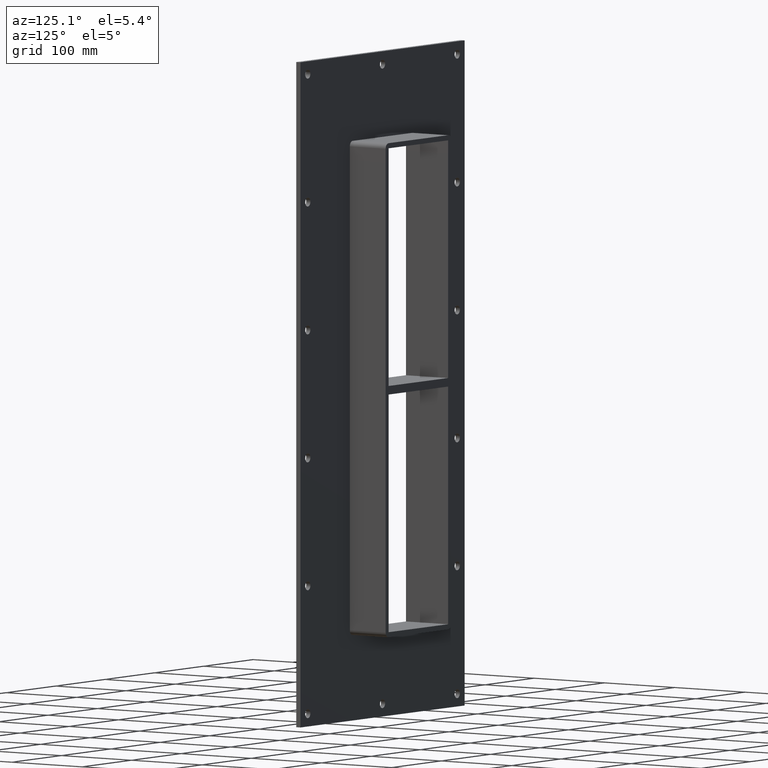
[diagram: clean part render]
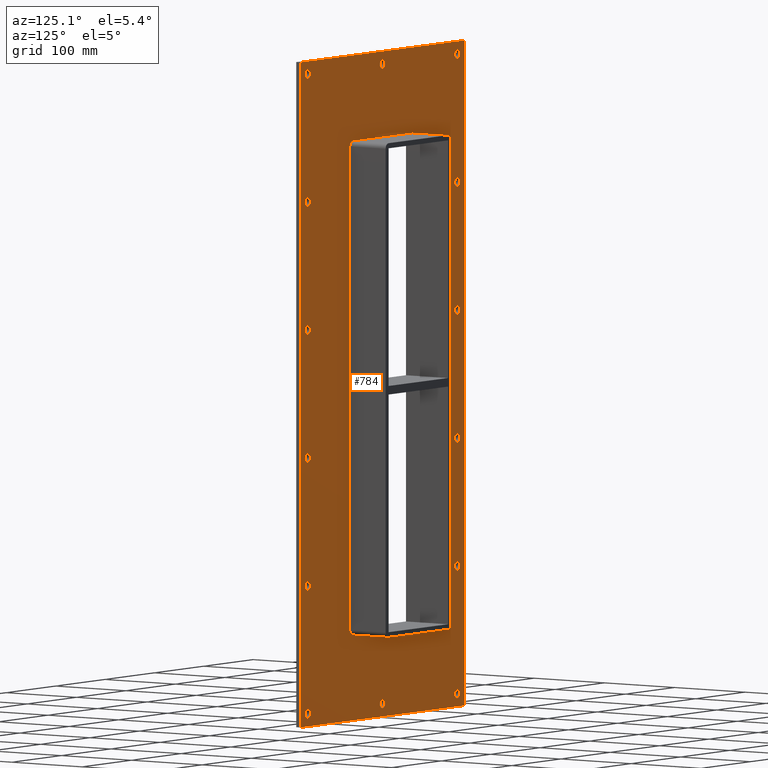
[diagram: same view with one face highlighted and labeled with its STEP entity id]
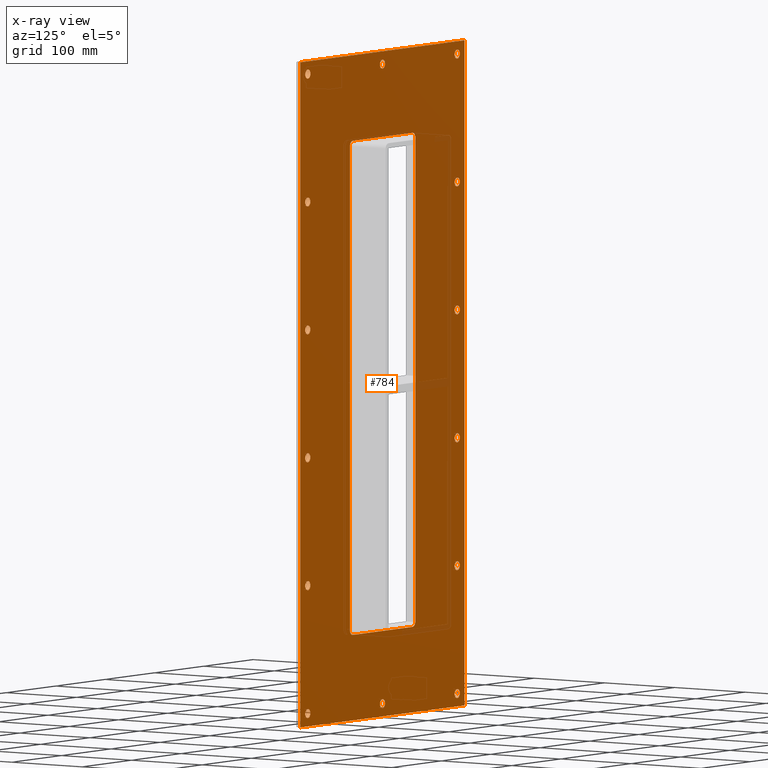
[diagram: x-ray of the same camera — body ghosted, the highlighted face saturated]
A machine part, auxiliary view. The second image highlights one B-rep face of the part: STEP entity #784.
The next image is the same camera in x-ray: the body ghosted, the highlighted face saturated — about 3% of this face is hidden behind the body in this view.
In plain terms, the highlighted planar face has unit normal (0, 1, 0).
Its self-contained STEP definition (entity closure, byte-faithful):
#73=CARTESIAN_POINT('',(-156.50000000000009,5.999999999999943,-374.00000000000006));
#74=VERTEX_POINT('',#73);
#75=CARTESIAN_POINT('',(-151.25000000000009,5.999999999999943,-374.00000000000006));
#76=DIRECTION('',(0.0,-1.0,0.0));
#77=DIRECTION('',(1.0,0.0,0.0));
#78=AXIS2_PLACEMENT_3D('',#75,#76,#77);
#79=CIRCLE('',#78,5.25);
#80=EDGE_CURVE('',#74,#74,#79,.T.);
#101=CARTESIAN_POINT('',(146.09999999999997,5.999999999999943,-224.39999999999998));
#102=VERTEX_POINT('',#101);
#103=CARTESIAN_POINT('',(151.34999999999997,5.999999999999943,-224.39999999999998));
#104=DIRECTION('',(0.0,-1.0,0.0));
#105=DIRECTION('',(1.0,0.0,0.0));
#106=AXIS2_PLACEMENT_3D('',#103,#104,#105);
#107=CIRCLE('',#106,5.25);
#108=EDGE_CURVE('',#102,#102,#107,.T.);
#129=CARTESIAN_POINT('',(-156.50000000000009,5.999999999999943,-224.39999999999998));
#130=VERTEX_POINT('',#129);
#131=CARTESIAN_POINT('',(-151.25000000000009,5.999999999999943,-224.39999999999998));
#132=DIRECTION('',(0.0,-1.0,0.0));
#133=DIRECTION('',(1.0,0.0,0.0));
#134=AXIS2_PLACEMENT_3D('',#131,#132,#133);
#135=CIRCLE('',#134,5.25);
#136=EDGE_CURVE('',#130,#130,#135,.T.);
#157=CARTESIAN_POINT('',(146.09999999999997,5.999999999999943,-74.799999999999969));
#158=VERTEX_POINT('',#157);
#159=CARTESIAN_POINT('',(151.34999999999997,5.999999999999943,-74.799999999999969));
#160=DIRECTION('',(0.0,-1.0,0.0));
#161=DIRECTION('',(1.0,0.0,0.0));
#162=AXIS2_PLACEMENT_3D('',#159,#160,#161);
#163=CIRCLE('',#162,5.25);
#164=EDGE_CURVE('',#158,#158,#163,.T.);
#185=CARTESIAN_POINT('',(-156.50000000000009,5.999999999999943,-74.799999999999969));
#186=VERTEX_POINT('',#185);
#187=CARTESIAN_POINT('',(-151.25000000000009,5.999999999999943,-74.799999999999969));
#188=DIRECTION('',(0.0,-1.0,0.0));
#189=DIRECTION('',(1.0,0.0,0.0));
#190=AXIS2_PLACEMENT_3D('',#187,#188,#189);
#191=CIRCLE('',#190,5.25);
#192=EDGE_CURVE('',#186,#186,#191,.T.);
#213=CARTESIAN_POINT('',(146.09999999999997,5.999999999999943,74.80000000000004));
#214=VERTEX_POINT('',#213);
#215=CARTESIAN_POINT('',(151.34999999999997,5.999999999999943,74.80000000000004));
#216=DIRECTION('',(0.0,-1.0,0.0));
#217=DIRECTION('',(1.0,0.0,0.0));
#218=AXIS2_PLACEMENT_3D('',#215,#216,#217);
#219=CIRCLE('',#218,5.25);
#220=EDGE_CURVE('',#214,#214,#219,.T.);
#241=CARTESIAN_POINT('',(-156.50000000000009,5.999999999999943,74.80000000000004));
#242=VERTEX_POINT('',#241);
#243=CARTESIAN_POINT('',(-151.25000000000009,5.999999999999943,74.80000000000004));
#244=DIRECTION('',(0.0,-1.0,0.0));
#245=DIRECTION('',(1.0,0.0,0.0));
#246=AXIS2_PLACEMENT_3D('',#243,#244,#245);
#247=CIRCLE('',#246,5.25);
#248=EDGE_CURVE('',#242,#242,#247,.T.);
#269=CARTESIAN_POINT('',(146.09999999999997,5.999999999999943,224.40000000000003));
#270=VERTEX_POINT('',#269);
#271=CARTESIAN_POINT('',(151.34999999999997,5.999999999999943,224.40000000000003));
#272=DIRECTION('',(0.0,-1.0,0.0));
#273=DIRECTION('',(1.0,0.0,0.0));
#274=AXIS2_PLACEMENT_3D('',#271,#272,#273);
#275=CIRCLE('',#274,5.25);
#276=EDGE_CURVE('',#270,#270,#275,.T.);
#297=CARTESIAN_POINT('',(-156.50000000000009,5.999999999999943,224.40000000000003));
#298=VERTEX_POINT('',#297);
#299=CARTESIAN_POINT('',(-151.25000000000009,5.999999999999943,224.40000000000003));
#300=DIRECTION('',(0.0,-1.0,0.0));
#301=DIRECTION('',(1.0,0.0,0.0));
#302=AXIS2_PLACEMENT_3D('',#299,#300,#301);
#303=CIRCLE('',#302,5.25);
#304=EDGE_CURVE('',#298,#298,#303,.T.);
#325=CARTESIAN_POINT('',(-5.200000000000067,5.999999999999943,374.00000000000006));
#326=VERTEX_POINT('',#325);
#327=CARTESIAN_POINT('',(0.049999999999937,5.999999999999943,374.00000000000006));
#328=DIRECTION('',(0.0,-1.0,0.0));
#329=DIRECTION('',(1.0,0.0,0.0));
#330=AXIS2_PLACEMENT_3D('',#327,#328,#329);
#331=CIRCLE('',#330,5.25);
#332=EDGE_CURVE('',#326,#326,#331,.T.);
#353=CARTESIAN_POINT('',(-5.200000000000067,5.999999999999943,-374.00000000000006));
#354=VERTEX_POINT('',#353);
#355=CARTESIAN_POINT('',(0.049999999999937,5.999999999999943,-374.00000000000006));
#356=DIRECTION('',(0.0,-1.0,0.0));
#357=DIRECTION('',(1.0,0.0,0.0));
#358=AXIS2_PLACEMENT_3D('',#355,#356,#357);
#359=CIRCLE('',#358,5.25);
#360=EDGE_CURVE('',#354,#354,#359,.T.);
#381=CARTESIAN_POINT('',(146.09999999999997,5.999999999999943,-374.00000000000006));
#382=VERTEX_POINT('',#381);
#383=CARTESIAN_POINT('',(151.34999999999997,5.999999999999943,-374.00000000000006));
#384=DIRECTION('',(0.0,-1.0,0.0));
#385=DIRECTION('',(1.0,0.0,0.0));
#386=AXIS2_PLACEMENT_3D('',#383,#384,#385);
#387=CIRCLE('',#386,5.25);
#388=EDGE_CURVE('',#382,#382,#387,.T.);
#409=CARTESIAN_POINT('',(-156.50000000000009,5.999999999999943,374.00000000000006));
#410=VERTEX_POINT('',#409);
#411=CARTESIAN_POINT('',(-151.25000000000009,5.999999999999943,374.00000000000006));
#412=DIRECTION('',(0.0,-1.0,0.0));
#413=DIRECTION('',(1.0,0.0,0.0));
#414=AXIS2_PLACEMENT_3D('',#411,#412,#413);
#415=CIRCLE('',#414,5.25);
#416=EDGE_CURVE('',#410,#410,#415,.T.);
#437=CARTESIAN_POINT('',(146.09999999999997,5.999999999999943,374.00000000000006));
#438=VERTEX_POINT('',#437);
#439=CARTESIAN_POINT('',(151.34999999999997,5.999999999999943,374.00000000000006));
#440=DIRECTION('',(0.0,-1.0,0.0));
#441=DIRECTION('',(1.0,0.0,0.0));
#442=AXIS2_PLACEMENT_3D('',#439,#440,#441);
#443=CIRCLE('',#442,5.25);
#444=EDGE_CURVE('',#438,#438,#443,.T.);
#633=CARTESIAN_POINT('',(1.535617E-014,6.000000000000001,-3.071234E-014));
#634=DIRECTION('',(0.0,1.0,0.0));
#635=DIRECTION('',(0.0,0.0,1.0));
#636=AXIS2_PLACEMENT_3D('',#633,#634,#635);
#637=PLANE('',#636);
#638=CARTESIAN_POINT('',(-166.24999999999997,6.000000000000001,389.0));
#639=VERTEX_POINT('',#638);
#640=CARTESIAN_POINT('',(166.25000000000003,6.000000000000001,389.0));
#641=VERTEX_POINT('',#640);
#642=CARTESIAN_POINT('',(-166.24999999999997,6.000000000000001,389.0));
#643=DIRECTION('',(1.0,0.0,0.0));
#644=VECTOR('',#643,332.5);
#645=LINE('',#642,#644);
#646=EDGE_CURVE('',#639,#641,#645,.T.);
#647=ORIENTED_EDGE('',*,*,#646,.T.);
#648=CARTESIAN_POINT('',(166.25000000000003,6.000000000000001,-389.00000000000011));
#649=VERTEX_POINT('',#648);
#650=CARTESIAN_POINT('',(166.25,6.000000000000001,389.0));
#651=DIRECTION('',(0.0,0.0,-1.0));
#652=VECTOR('',#651,778.00000000000011);
#653=LINE('',#650,#652);
#654=EDGE_CURVE('',#641,#649,#653,.T.);
#655=ORIENTED_EDGE('',*,*,#654,.T.);
#656=CARTESIAN_POINT('',(-166.24999999999997,6.000000000000001,-389.00000000000011));
#657=VERTEX_POINT('',#656);
#658=CARTESIAN_POINT('',(166.25,6.000000000000001,-389.00000000000006));
#659=DIRECTION('',(-1.0,0.0,0.0));
#660=VECTOR('',#659,332.5);
#661=LINE('',#658,#660);
#662=EDGE_CURVE('',#649,#657,#661,.T.);
#663=ORIENTED_EDGE('',*,*,#662,.T.);
#664=CARTESIAN_POINT('',(-166.24999999999997,6.000000000000001,-389.00000000000006));
#665=DIRECTION('',(0.0,0.0,1.0));
#666=VECTOR('',#665,778.00000000000011);
#667=LINE('',#664,#666);
#668=EDGE_CURVE('',#657,#639,#667,.T.);
#669=ORIENTED_EDGE('',*,*,#668,.T.);
#670=EDGE_LOOP('',(#647,#655,#663,#669));
#671=FACE_OUTER_BOUND('',#670,.T.);
#672=ORIENTED_EDGE('',*,*,#80,.T.);
#673=EDGE_LOOP('',(#672));
#674=FACE_BOUND('',#673,.T.);
#675=ORIENTED_EDGE('',*,*,#108,.T.);
#676=EDGE_LOOP('',(#675));
#677=FACE_BOUND('',#676,.T.);
#678=ORIENTED_EDGE('',*,*,#136,.T.);
#679=EDGE_LOOP('',(#678));
#680=FACE_BOUND('',#679,.T.);
#681=ORIENTED_EDGE('',*,*,#164,.T.);
#682=EDGE_LOOP('',(#681));
#683=FACE_BOUND('',#682,.T.);
#684=ORIENTED_EDGE('',*,*,#192,.T.);
#685=EDGE_LOOP('',(#684));
#686=FACE_BOUND('',#685,.T.);
#687=ORIENTED_EDGE('',*,*,#220,.T.);
#688=EDGE_LOOP('',(#687));
#689=FACE_BOUND('',#688,.T.);
#690=ORIENTED_EDGE('',*,*,#248,.T.);
#691=EDGE_LOOP('',(#690));
#692=FACE_BOUND('',#691,.T.);
#693=ORIENTED_EDGE('',*,*,#276,.T.);
#694=EDGE_LOOP('',(#693));
#695=FACE_BOUND('',#694,.T.);
#696=ORIENTED_EDGE('',*,*,#304,.T.);
#697=EDGE_LOOP('',(#696));
#698=FACE_BOUND('',#697,.T.);
#699=ORIENTED_EDGE('',*,*,#332,.T.);
#700=EDGE_LOOP('',(#699));
#701=FACE_BOUND('',#700,.T.);
#702=ORIENTED_EDGE('',*,*,#360,.T.);
#703=EDGE_LOOP('',(#702));
#704=FACE_BOUND('',#703,.T.);
#705=ORIENTED_EDGE('',*,*,#388,.T.);
#706=EDGE_LOOP('',(#705));
#707=FACE_BOUND('',#706,.T.);
#708=ORIENTED_EDGE('',*,*,#416,.T.);
#709=EDGE_LOOP('',(#708));
#710=FACE_BOUND('',#709,.T.);
#711=ORIENTED_EDGE('',*,*,#444,.T.);
#712=EDGE_LOOP('',(#711));
#713=FACE_BOUND('',#712,.T.);
#714=CARTESIAN_POINT('',(-66.250000000000014,6.000000000000001,283.00000000000006));
#715=VERTEX_POINT('',#714);
#716=CARTESIAN_POINT('',(-60.25,6.000000000000001,289.00000000000006));
#717=VERTEX_POINT('',#716);
#718=CARTESIAN_POINT('',(-60.25,6.000000000000001,283.00000000000006));
#719=DIRECTION('',(0.0,1.0,0.0));
#720=DIRECTION('',(-0.707106781186548,0.0,0.707106781186548));
#721=AXIS2_PLACEMENT_3D('',#718,#719,#720);
#722=CIRCLE('',#721,6.000000000000002);
#723=EDGE_CURVE('',#715,#717,#722,.T.);
#724=ORIENTED_EDGE('',*,*,#723,.F.);
#725=CARTESIAN_POINT('',(-66.250000000000014,6.000000000000001,-283.0));
#726=VERTEX_POINT('',#725);
#727=CARTESIAN_POINT('',(-66.250000000000014,6.000000000000001,-283.0));
#728=DIRECTION('',(0.0,0.0,1.0));
#729=VECTOR('',#728,566.0);
#730=LINE('',#727,#729);
#731=EDGE_CURVE('',#726,#715,#730,.T.);
#732=ORIENTED_EDGE('',*,*,#731,.F.);
#733=CARTESIAN_POINT('',(-60.25,6.000000000000001,-289.0));
#734=VERTEX_POINT('',#733);
#735=CARTESIAN_POINT('',(-60.25,6.000000000000001,-283.0));
#736=DIRECTION('',(0.0,1.0,0.0));
#737=DIRECTION('',(-0.707106781186548,0.0,-0.707106781186548));
#738=AXIS2_PLACEMENT_3D('',#735,#736,#737);
#739=CIRCLE('',#738,6.000000000000002);
#740=EDGE_CURVE('',#734,#726,#739,.T.);
#741=ORIENTED_EDGE('',*,*,#740,.F.);
#742=CARTESIAN_POINT('',(60.249999999999986,6.000000000000001,-289.0));
#743=VERTEX_POINT('',#742);
#744=CARTESIAN_POINT('',(60.249999999999986,6.000000000000001,-289.0));
#745=DIRECTION('',(-1.0,0.0,0.0));
#746=VECTOR('',#745,120.49999999999997);
#747=LINE('',#744,#746);
#748=EDGE_CURVE('',#743,#734,#747,.T.);
#749=ORIENTED_EDGE('',*,*,#748,.F.);
#750=CARTESIAN_POINT('',(66.249999999999986,6.000000000000001,-283.0));
#751=VERTEX_POINT('',#750);
#752=CARTESIAN_POINT('',(60.249999999999986,6.000000000000001,-283.0));
#753=DIRECTION('',(0.0,1.0,0.0));
#754=DIRECTION('',(0.707106781186548,0.0,-0.707106781186548));
#755=AXIS2_PLACEMENT_3D('',#752,#753,#754);
#756=CIRCLE('',#755,6.000000000000002);
#757=EDGE_CURVE('',#751,#743,#756,.T.);
#758=ORIENTED_EDGE('',*,*,#757,.F.);
#759=CARTESIAN_POINT('',(66.249999999999986,6.000000000000001,283.00000000000006));
#760=VERTEX_POINT('',#759);
#761=CARTESIAN_POINT('',(66.249999999999986,6.000000000000001,283.0));
#762=DIRECTION('',(0.0,0.0,-1.0));
#763=VECTOR('',#762,566.0);
#764=LINE('',#761,#763);
#765=EDGE_CURVE('',#760,#751,#764,.T.);
#766=ORIENTED_EDGE('',*,*,#765,.F.);
#767=CARTESIAN_POINT('',(60.249999999999986,6.000000000000001,289.00000000000006));
#768=VERTEX_POINT('',#767);
#769=CARTESIAN_POINT('',(60.249999999999986,6.000000000000001,283.00000000000006));
#770=DIRECTION('',(0.0,1.0,0.0));
#771=DIRECTION('',(0.707106781186548,0.0,0.707106781186548));
#772=AXIS2_PLACEMENT_3D('',#769,#770,#771);
#773=CIRCLE('',#772,6.000000000000002);
#774=EDGE_CURVE('',#768,#760,#773,.T.);
#775=ORIENTED_EDGE('',*,*,#774,.F.);
#776=CARTESIAN_POINT('',(-60.25,6.000000000000001,289.00000000000006));
#777=DIRECTION('',(1.0,0.0,0.0));
#778=VECTOR('',#777,120.5);
#779=LINE('',#776,#778);
#780=EDGE_CURVE('',#717,#768,#779,.T.);
#781=ORIENTED_EDGE('',*,*,#780,.F.);
#782=EDGE_LOOP('',(#724,#732,#741,#749,#758,#766,#775,#781));
#783=FACE_BOUND('',#782,.T.);
#784=ADVANCED_FACE('',(#671,#674,#677,#680,#683,#686,#689,#692,#695,#698,#701,#704,#707,#710,#713,#783),#637,.T.);